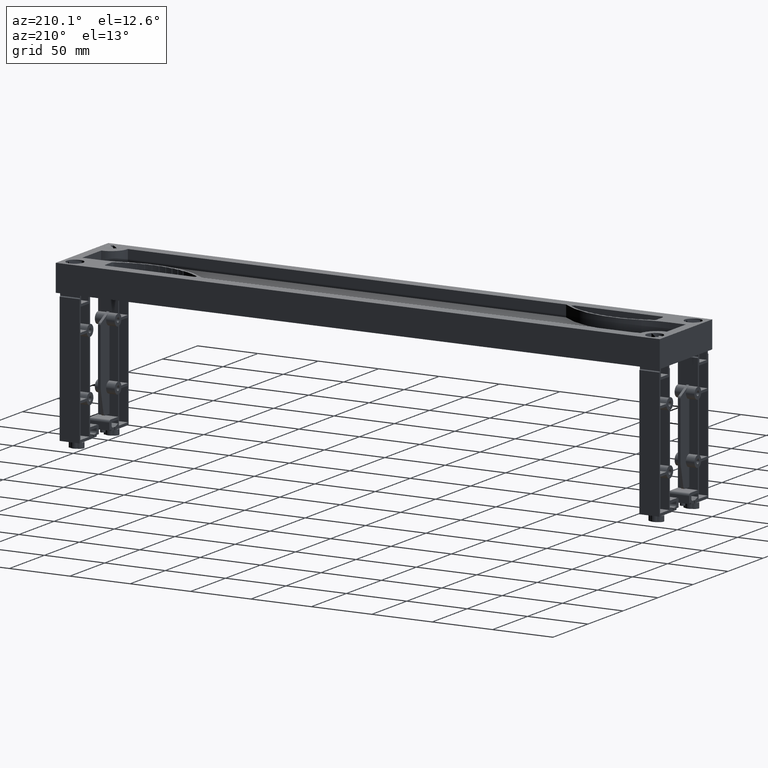
[diagram: clean part render]
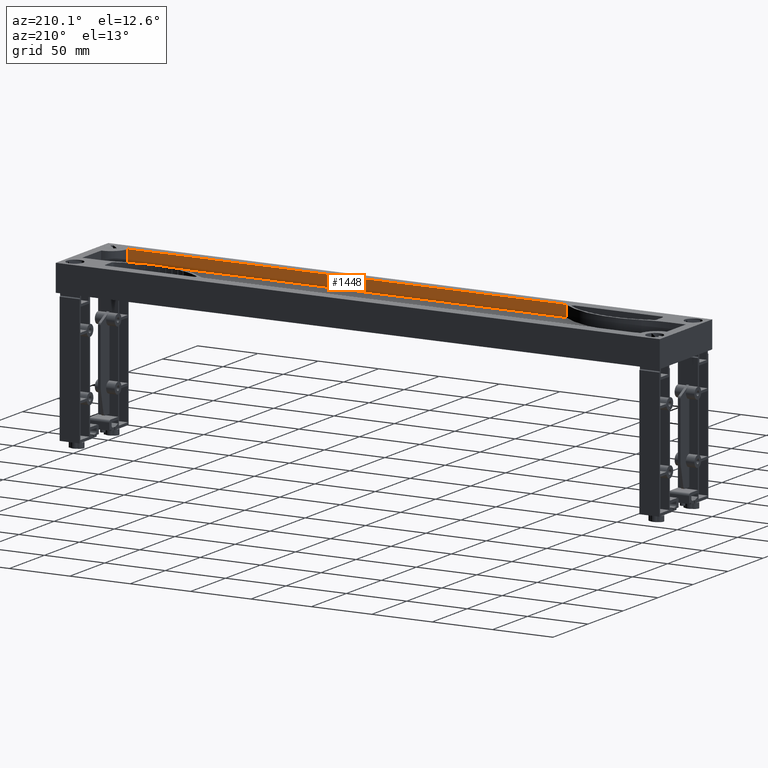
[diagram: same view with one face highlighted and labeled with its STEP entity id]
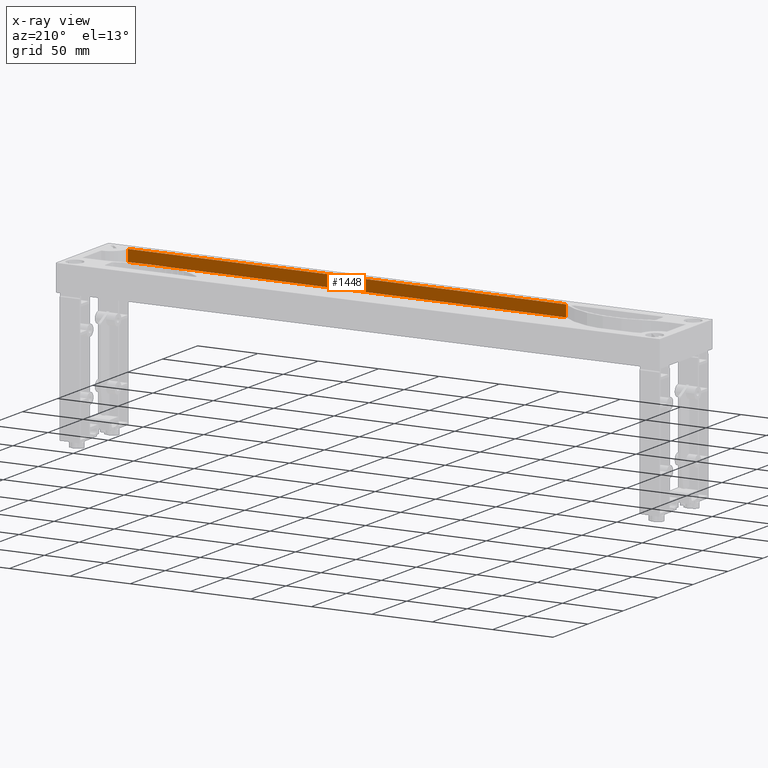
[diagram: x-ray of the same camera — body ghosted, the highlighted face saturated]
A machine part, auxiliary view. The second image highlights one B-rep face of the part: STEP entity #1448.
The next image is the same camera in x-ray: the body ghosted, the highlighted face saturated — about 0% of this face is hidden behind the body in this view.
In plain terms, the highlighted planar face has unit normal (0, 1, 0).
Its self-contained STEP definition (entity closure, byte-faithful):
#1448=ADVANCED_FACE('',(#3474),#3475,.T.);
#3474=FACE_OUTER_BOUND('',#6219,.T.);
#3475=PLANE('',#6220);
#6219=EDGE_LOOP('',(#9883,#9884,#9885,#9886));
#6220=AXIS2_PLACEMENT_3D('',#9887,#9888,#9889);
#9883=ORIENTED_EDGE('',*,*,#17347,.T.);
#9884=ORIENTED_EDGE('',*,*,#17355,.F.);
#9885=ORIENTED_EDGE('',*,*,#17356,.T.);
#9886=ORIENTED_EDGE('',*,*,#17342,.F.);
#9887=CARTESIAN_POINT('',(250.0,10.0,132.05));
#9888=DIRECTION('',(-0.0,1.0,0.0));
#9889=DIRECTION('',(1.0,0.0,0.0));
#17342=EDGE_CURVE('',#20909,#20911,#20912,.T.);
#17347=EDGE_CURVE('',#20909,#20917,#20919,.T.);
#17355=EDGE_CURVE('',#20929,#20917,#20930,.T.);
#17356=EDGE_CURVE('',#20929,#20911,#20931,.T.);
#20909=VERTEX_POINT('',#26046);
#20911=VERTEX_POINT('',#26048);
#20912=LINE('',#26049,#26050);
#20917=VERTEX_POINT('',#26056);
#20919=LINE('',#26058,#26059);
#20929=VERTEX_POINT('',#26072);
#20930=LINE('',#26073,#26074);
#20931=LINE('',#26075,#26076);
#26046=CARTESIAN_POINT('',(115.199999999959,10.0000000000183,127.3));
#26048=CARTESIAN_POINT('',(478.0000000001,9.9999999999977,127.3));
#26049=CARTESIAN_POINT('',(250.0,10.0,127.3));
#26050=VECTOR('',#32556,1.0);
#26056=CARTESIAN_POINT('',(115.199999999959,10.0000000000183,136.8));
#26058=CARTESIAN_POINT('',(115.199999999979,10.0,132.05));
#26059=VECTOR('',#32564,1.0);
#26072=CARTESIAN_POINT('',(478.0000000001,9.9999999999977,136.8));
#26073=CARTESIAN_POINT('',(250.0,10.0,136.8));
#26074=VECTOR('',#32571,1.0);
#26075=CARTESIAN_POINT('',(478.0000000001,10.0,136.8));
#26076=VECTOR('',#32572,1.0);
#32556=DIRECTION('',(1.0,0.0,0.0));
#32564=DIRECTION('',(0.0,-0.0,1.0));
#32571=DIRECTION('',(-1.0,0.0,0.0));
#32572=DIRECTION('',(0.0,0.0,-1.0));